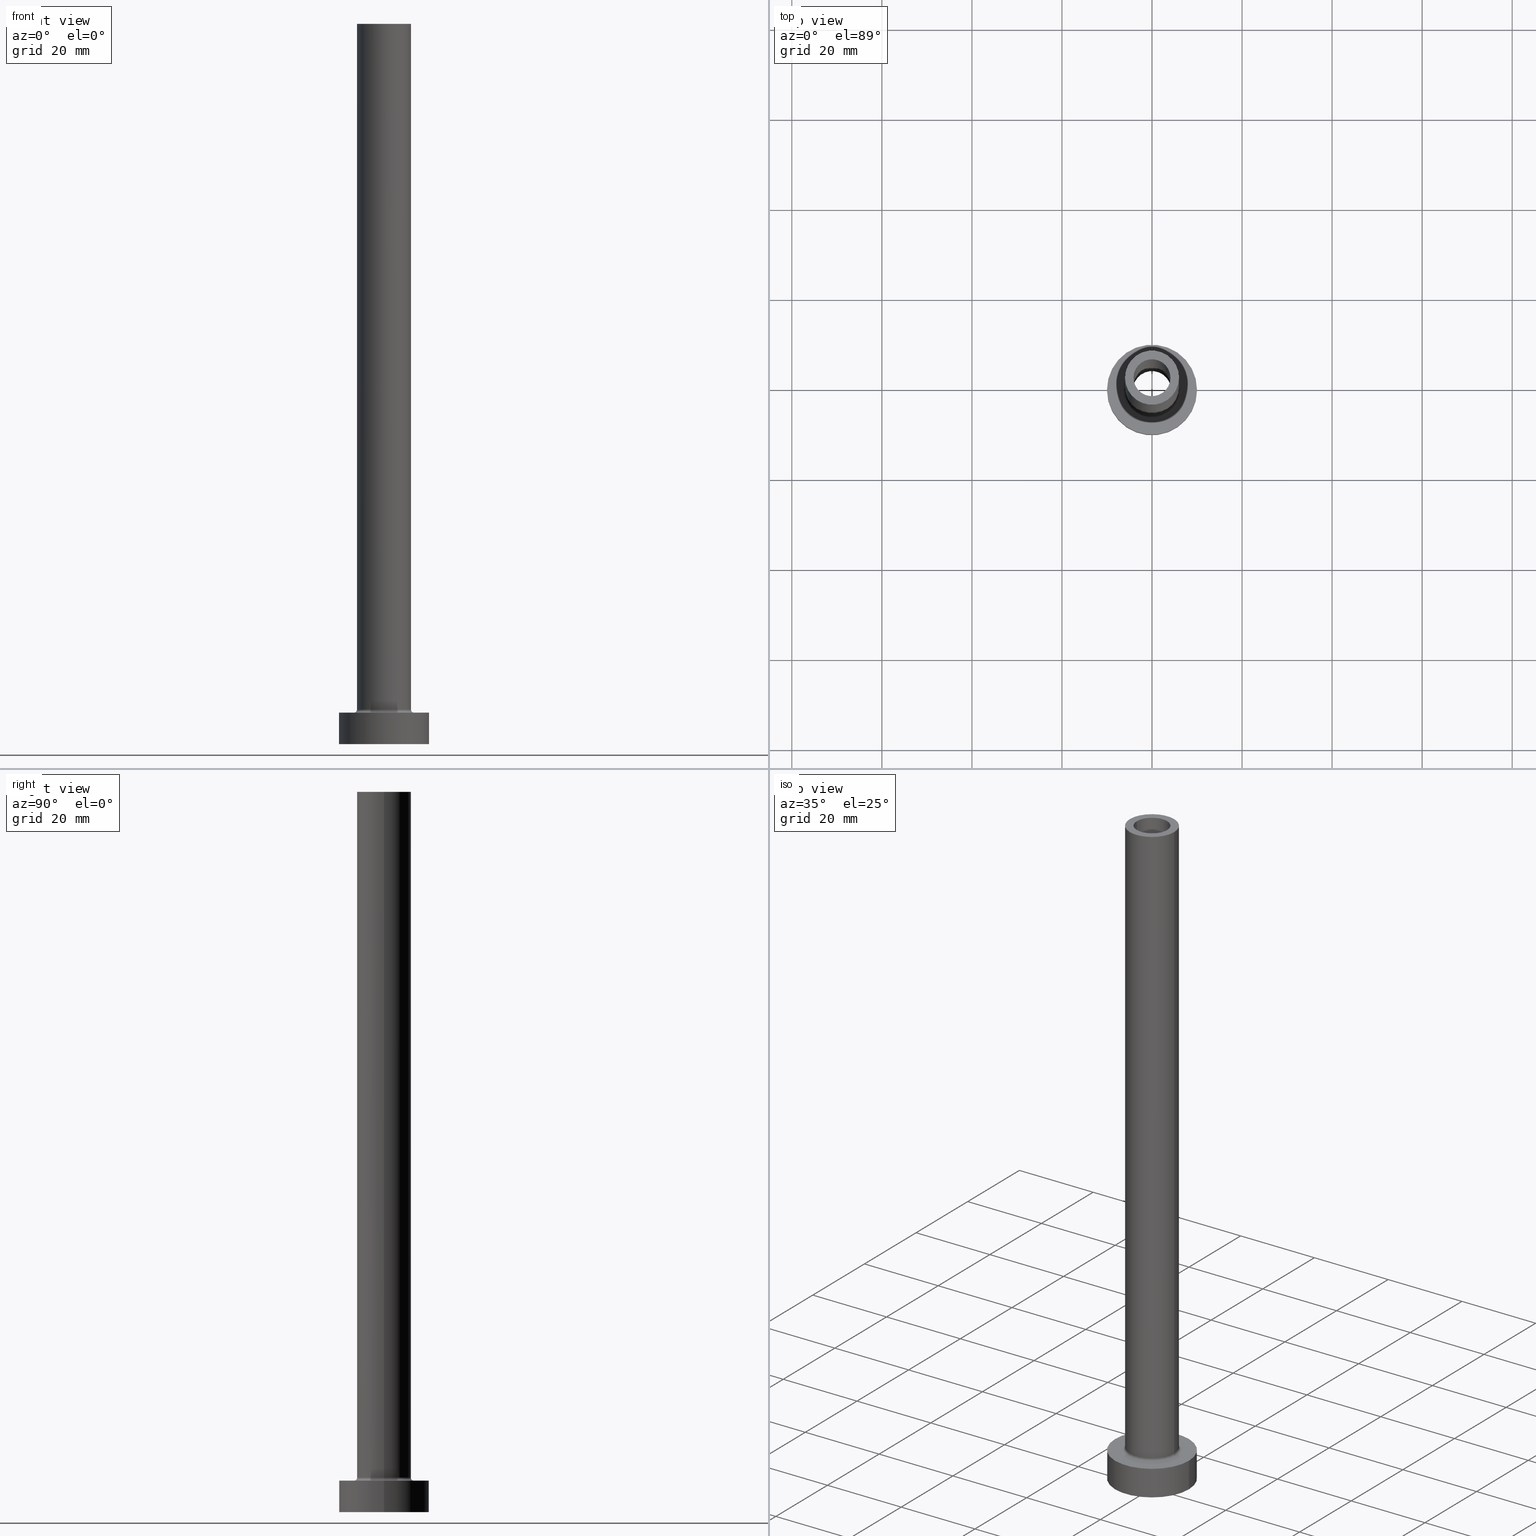
[diagram: canonical four-view strip — front | top / right | iso, engineering-drawing reading convention]
A machine part, canonical four-view strip (front | top / right | iso — engineering-drawing reading convention). The complete STEP part file that produces these views, byte-faithful:
ISO-10303-21;
HEADER;
FILE_DESCRIPTION (( 'STEP AP203' ),
    '1' );
FILE_NAME ('8e1a.STEP',
    '2023-02-13T07:45:53',
    ( '' ),
    ( '' ),
    'SwSTEP 2.0',
    'SolidWorks 2019',
    '' );
FILE_SCHEMA (( 'CONFIG_CONTROL_DESIGN' ));
ENDSEC;

DATA;
#1 = ORIENTED_EDGE ( 'NONE', *, *, #192, .T. ) ;
#2 = CARTESIAN_POINT ( 'NONE',  ( -4.099999999999999645, 0.000000000000000000, 115.0000000000000000 ) ) ;
#3 = ADVANCED_FACE ( 'NONE', ( #328, #71 ), #295, .T. ) ;
#4 = ADVANCED_BREP_SHAPE_REPRESENTATION ( '8e1a', ( #227, #251 ), #162 ) ;
#5 = VERTEX_POINT ( 'NONE', #326 ) ;
#6 = FACE_OUTER_BOUND ( 'NONE', #452, .T. ) ;
#7 = DIRECTION ( 'NONE',  ( 1.000000000000000000, 0.000000000000000000, 0.000000000000000000 ) ) ;
#8 = ORIENTED_EDGE ( 'NONE', *, *, #269, .T. ) ;
#9 = FACE_OUTER_BOUND ( 'NONE', #208, .T. ) ;
#10 = CC_DESIGN_APPROVAL ( #436, ( #102 ) ) ;
#11 = CIRCLE ( 'NONE', #386, 4.250000000000000000 ) ;
#12 = DIRECTION ( 'NONE',  ( 1.000000000000000000, 0.000000000000000000, 0.000000000000000000 ) ) ;
#13 = PRODUCT_DEFINITION ( 'NEZN�M�', '', #210, #320 ) ;
#14 = AXIS2_PLACEMENT_3D ( 'NONE', #438, #231, #161 ) ;
#15 = PRODUCT_DEFINITION_SHAPE ( 'NONE', 'NONE',  #13 ) ;
#16 = DIRECTION ( 'NONE',  ( 0.000000000000000000, 0.000000000000000000, 1.000000000000000000 ) ) ;
#17 = CARTESIAN_POINT ( 'NONE',  ( 0.000000000000000000, 0.000000000000000000, 160.0000000000000000 ) ) ;
#18 = DIRECTION ( 'NONE',  ( 0.000000000000000000, 0.000000000000000000, 1.000000000000000000 ) ) ;
#19 = EDGE_CURVE ( 'NONE', #25, #5, #220, .T. ) ;
#20 = VECTOR ( 'NONE', #380, 1000.000000000000000 ) ;
#21 = VERTEX_POINT ( 'NONE', #2 ) ;
#22 = ORIENTED_EDGE ( 'NONE', *, *, #232, .F. ) ;
#23 = APPROVAL_STATUS ( 'not_yet_approved' ) ;
#24 = CARTESIAN_POINT ( 'NONE',  ( -4.099999999999999645, 0.000000000000000000, 160.0000000000000000 ) ) ;
#25 = VERTEX_POINT ( 'NONE', #187 ) ;
#26 = DIRECTION ( 'NONE',  ( 1.000000000000000000, 0.000000000000000000, 0.000000000000000000 ) ) ;
#27 = PERSON_AND_ORGANIZATION ( #79, #300 ) ;
#28 = ORIENTED_EDGE ( 'NONE', *, *, #108, .F. ) ;
#29 = ORIENTED_EDGE ( 'NONE', *, *, #135, .T. ) ;
#30 = CARTESIAN_POINT ( 'NONE',  ( 0.000000000000000000, 0.000000000000000000, 7.000000000000000000 ) ) ;
#31 = APPROVAL_ROLE ( '' ) ;
#32 = EDGE_LOOP ( 'NONE', ( #171, #68 ) ) ;
#33 = CIRCLE ( 'NONE', #403, 10.00000000000000000 ) ;
#34 = DIRECTION ( 'NONE',  ( -0.000000000000000000, -0.000000000000000000, -1.000000000000000000 ) ) ;
#35 = ADVANCED_FACE ( 'NONE', ( #103 ), #430, .T. ) ;
#36 = CARTESIAN_POINT ( 'NONE',  ( 0.000000000000000000, 0.000000000000000000, 115.0000000000000000 ) ) ;
#37 = FACE_OUTER_BOUND ( 'NONE', #366, .T. ) ;
#38 = DIRECTION ( 'NONE',  ( 0.000000000000000000, 0.000000000000000000, 1.000000000000000000 ) ) ;
#39 = EDGE_LOOP ( 'NONE', ( #443, #406 ) ) ;
#40 = AXIS2_PLACEMENT_3D ( 'NONE', #444, #412, #342 ) ;
#41 = CARTESIAN_POINT ( 'NONE',  ( 0.000000000000000000, 0.000000000000000000, 127.0208152801713055 ) ) ;
#42 = DIRECTION ( 'NONE',  ( 0.000000000000000000, 0.000000000000000000, 1.000000000000000000 ) ) ;
#43 = CIRCLE ( 'NONE', #166, 4.099999999999999645 ) ;
#44 = FACE_OUTER_BOUND ( 'NONE', #112, .T. ) ;
#45 = ORIENTED_EDGE ( 'NONE', *, *, #442, .F. ) ;
#46 = AXIS2_PLACEMENT_3D ( 'NONE', #404, #42, #234 ) ;
#47 = FACE_OUTER_BOUND ( 'NONE', #258, .T. ) ;
#48 = DIRECTION ( 'NONE',  ( -0.000000000000000000, -0.000000000000000000, -1.000000000000000000 ) ) ;
#49 = ORIENTED_EDGE ( 'NONE', *, *, #74, .T. ) ;
#50 = DIRECTION ( 'NONE',  ( -0.000000000000000000, -0.000000000000000000, -1.000000000000000000 ) ) ;
#51 = CC_DESIGN_DATE_AND_TIME_ASSIGNMENT ( #424, #104, ( #13 ) ) ;
#52 = SHAPE_DEFINITION_REPRESENTATION ( #15, #4 ) ;
#53 = EDGE_LOOP ( 'NONE', ( #311, #377, #1, #222 ) ) ;
#54 = CYLINDRICAL_SURFACE ( 'NONE', #250, 6.000000000000000888 ) ;
#55 = ORIENTED_EDGE ( 'NONE', *, *, #425, .F. ) ;
#56 = CARTESIAN_POINT ( 'NONE',  ( 0.000000000000000000, 0.000000000000000000, 115.0000000000000000 ) ) ;
#57 = CIRCLE ( 'NONE', #235, 6.000000000000000888 ) ;
#58 = CC_DESIGN_APPROVAL ( #123, ( #13 ) ) ;
#59 = APPROVAL_DATE_TIME ( #179, #123 ) ;
#60 = CC_DESIGN_PERSON_AND_ORGANIZATION_ASSIGNMENT ( #446, #100, ( #210 ) ) ;
#61 = ORIENTED_EDGE ( 'NONE', *, *, #108, .T. ) ;
#62 = PERSON_AND_ORGANIZATION_ROLE ( 'classification_officer' ) ;
#63 = CARTESIAN_POINT ( 'NONE',  ( 0.000000000000000000, 0.000000000000000000, 115.0000000000000000 ) ) ;
#64 = CYLINDRICAL_SURFACE ( 'NONE', #154, 4.099999999999999645 ) ;
#65 = APPROVAL ( #355, 'NEUR�EN�' ) ;
#66 = AXIS2_PLACEMENT_3D ( 'NONE', #364, #392, #69 ) ;
#67 = APPROVAL_PERSON_ORGANIZATION ( #216, #436, #31 ) ;
#68 = ORIENTED_EDGE ( 'NONE', *, *, #269, .F. ) ;
#69 = DIRECTION ( 'NONE',  ( -1.000000000000000000, 1.224646799147353454E-16, 0.000000000000000000 ) ) ;
#70 = ORIENTED_EDGE ( 'NONE', *, *, #203, .F. ) ;
#71 = FACE_OUTER_BOUND ( 'NONE', #39, .T. ) ;
#72 = CYLINDRICAL_SURFACE ( 'NONE', #219, 4.099999999999999645 ) ;
#73 = AXIS2_PLACEMENT_3D ( 'NONE', #244, #173, #97 ) ;
#74 = EDGE_CURVE ( 'NONE', #182, #264, #335, .T. ) ;
#75 = ADVANCED_FACE ( 'NONE', ( #37 ), #298, .T. ) ;
#76 = CARTESIAN_POINT ( 'NONE',  ( 6.000000000000000888, 7.347880794884120722E-16, 160.0000000000000000 ) ) ;
#77 = CARTESIAN_POINT ( 'NONE',  ( 4.099999999999999645, 5.021051876504146399E-16, 115.0000000000000000 ) ) ;
#78 = ORIENTED_EDGE ( 'NONE', *, *, #135, .F. ) ;
#79 = PERSON ( 'NEUR�EN�', 'NEUR�EN�', 'NEUR�EN�', ('NEUR�EN�'), ('NEUR�EN�'), ('NEUR�EN�') ) ;
#80 = ORIENTED_EDGE ( 'NONE', *, *, #325, .T. ) ;
#81 = DIRECTION ( 'NONE',  ( 1.000000000000000000, 0.000000000000000000, 0.000000000000000000 ) ) ;
#82 = ORIENTED_EDGE ( 'NONE', *, *, #238, .F. ) ;
#83 = ADVANCED_FACE ( 'NONE', ( #9 ), #64, .F. ) ;
#84 = AXIS2_PLACEMENT_3D ( 'NONE', #354, #302, #197 ) ;
#85 = LINE ( 'NONE', #243, #449 ) ;
#86 = DIRECTION ( 'NONE',  ( -1.000000000000000000, 0.000000000000000000, 0.000000000000000000 ) ) ;
#87 = AXIS2_PLACEMENT_3D ( 'NONE', #217, #145, #363 ) ;
#88 = DIRECTION ( 'NONE',  ( -0.000000000000000000, -0.000000000000000000, -1.000000000000000000 ) ) ;
#89 = COORDINATED_UNIVERSAL_TIME_OFFSET ( 1, 0, .AHEAD. ) ;
#90 = VERTEX_POINT ( 'NONE', #426 ) ;
#91 = PLANE ( 'NONE',  #40 ) ;
#92 = EDGE_CURVE ( 'NONE', #353, #331, #327, .T. ) ;
#93 = UNCERTAINTY_MEASURE_WITH_UNIT (LENGTH_MEASURE( 1.000000000000000082E-05 ), #460, 'distance_accuracy_value', 'NONE');
#94 = LINE ( 'NONE', #221, #209 ) ;
#95 = ORIENTED_EDGE ( 'NONE', *, *, #156, .F. ) ;
#96 = DIRECTION ( 'NONE',  ( -0.000000000000000000, -0.000000000000000000, -1.000000000000000000 ) ) ;
#97 = DIRECTION ( 'NONE',  ( 1.000000000000000000, 0.000000000000000000, 0.000000000000000000 ) ) ;
#98 = DIRECTION ( 'NONE',  ( 1.000000000000000000, 0.000000000000000000, 0.000000000000000000 ) ) ;
#99 = EDGE_CURVE ( 'NONE', #107, #344, #213, .T. ) ;
#100 = PERSON_AND_ORGANIZATION_ROLE ( 'creator' ) ;
#101 = ORIENTED_EDGE ( 'NONE', *, *, #370, .F. ) ;
#102 = SECURITY_CLASSIFICATION ( '', '', #214 ) ;
#103 = FACE_OUTER_BOUND ( 'NONE', #357, .T. ) ;
#104 = DATE_TIME_ROLE ( 'creation_date' ) ;
#105 = CARTESIAN_POINT ( 'NONE',  ( 0.000000000000000000, 0.000000000000000000, 160.0000000000000000 ) ) ;
#106 = ADVANCED_FACE ( 'NONE', ( #6 ), #433, .F. ) ;
#107 = VERTEX_POINT ( 'NONE', #329 ) ;
#108 = EDGE_CURVE ( 'NONE', #5, #25, #11, .T. ) ;
#109 = CIRCLE ( 'NONE', #421, 6.700000000000001066 ) ;
#110 = ORIENTED_EDGE ( 'NONE', *, *, #19, .T. ) ;
#111 = DIRECTION ( 'NONE',  ( 0.000000000000000000, 0.000000000000000000, 1.000000000000000000 ) ) ;
#112 = EDGE_LOOP ( 'NONE', ( #55, #185, #239, #70 ) ) ;
#113 = DIRECTION ( 'NONE',  ( -1.000000000000000000, 0.000000000000000000, 0.000000000000000000 ) ) ;
#114 = AXIS2_PLACEMENT_3D ( 'NONE', #172, #50, #347 ) ;
#115 = APPROVAL_PERSON_ORGANIZATION ( #410, #65, #144 ) ;
#116 = ORIENTED_EDGE ( 'NONE', *, *, #147, .T. ) ;
#117 = EDGE_CURVE ( 'NONE', #131, #21, #256, .T. ) ;
#118 = DIRECTION ( 'NONE',  ( 0.000000000000000000, 0.000000000000000000, 1.000000000000000000 ) ) ;
#119 = DIRECTION ( 'NONE',  ( 1.000000000000000000, 0.000000000000000000, 0.000000000000000000 ) ) ;
#120 = TOROIDAL_SURFACE ( 'NONE', #272, 6.700000000000001066, 0.6999999999999999556 ) ;
#121 = ORIENTED_EDGE ( 'NONE', *, *, #419, .T. ) ;
#122 = CARTESIAN_POINT ( 'NONE',  ( 0.000000000000000000, 0.000000000000000000, 0.000000000000000000 ) ) ;
#123 = APPROVAL ( #384, 'NEUR�EN�' ) ;
#124 = ORIENTED_EDGE ( 'NONE', *, *, #158, .T. ) ;
#125 = APPROVAL_ROLE ( '' ) ;
#126 = VERTEX_POINT ( 'NONE', #376 ) ;
#127 = VECTOR ( 'NONE', #146, 1000.000000000000000 ) ;
#128 = CARTESIAN_POINT ( 'NONE',  ( 0.000000000000000000, 0.000000000000000000, 7.000000000000000000 ) ) ;
#129 = FACE_OUTER_BOUND ( 'NONE', #53, .T. ) ;
#130 = DIRECTION ( 'NONE',  ( 0.000000000000000000, 0.000000000000000000, -1.000000000000000000 ) ) ;
#131 = VERTEX_POINT ( 'NONE', #24 ) ;
#132 = CYLINDRICAL_SURFACE ( 'NONE', #114, 10.00000000000000000 ) ;
#133 = APPLICATION_CONTEXT ( 'configuration controlled 3d designs of mechanical parts and assemblies' ) ;
#134 = FACE_BOUND ( 'NONE', #405, .T. ) ;
#135 = EDGE_CURVE ( 'NONE', #90, #285, #175, .T. ) ;
#136 = DIRECTION ( 'NONE',  ( 1.000000000000000000, 0.000000000000000000, -0.000000000000000000 ) ) ;
#137 = COORDINATED_UNIVERSAL_TIME_OFFSET ( 1, 0, .AHEAD. ) ;
#138 = ORIENTED_EDGE ( 'NONE', *, *, #365, .F. ) ;
#139 = APPROVAL_DATE_TIME ( #457, #65 ) ;
#140 = CARTESIAN_POINT ( 'NONE',  ( 0.000000000000000000, 0.000000000000000000, 160.0000000000000000 ) ) ;
#141 = CIRCLE ( 'NONE', #401, 4.099999999999999645 ) ;
#142 = LOCAL_TIME ( 8, 45, 53.00000000000000000, #137 ) ;
#143 = AXIS2_PLACEMENT_3D ( 'NONE', #389, #190, #226 ) ;
#144 = APPROVAL_ROLE ( '' ) ;
#145 = DIRECTION ( 'NONE',  ( -0.000000000000000000, -0.000000000000000000, -1.000000000000000000 ) ) ;
#146 = DIRECTION ( 'NONE',  ( -0.000000000000000000, -0.000000000000000000, -1.000000000000000000 ) ) ;
#147 = EDGE_CURVE ( 'NONE', #107, #126, #207, .T. ) ;
#148 = CARTESIAN_POINT ( 'NONE',  ( 0.000000000000000000, 0.000000000000000000, 7.000000000000000000 ) ) ;
#149 = DIRECTION ( 'NONE',  ( 0.000000000000000000, 0.000000000000000000, -1.000000000000000000 ) ) ;
#150 = ORIENTED_EDGE ( 'NONE', *, *, #156, .T. ) ;
#151 = FACE_BOUND ( 'NONE', #32, .T. ) ;
#152 = VERTEX_POINT ( 'NONE', #352 ) ;
#153 = CIRCLE ( 'NONE', #73, 10.00000000000000000 ) ;
#154 = AXIS2_PLACEMENT_3D ( 'NONE', #105, #291, #359 ) ;
#155 = DIRECTION ( 'NONE',  ( 1.000000000000000000, 0.000000000000000000, 0.000000000000000000 ) ) ;
#156 = EDGE_CURVE ( 'NONE', #25, #353, #455, .T. ) ;
#157 = DIRECTION ( 'NONE',  ( 0.000000000000000000, 0.000000000000000000, 1.000000000000000000 ) ) ;
#158 = EDGE_CURVE ( 'NONE', #182, #176, #177, .T. ) ;
#159 = DIRECTION ( 'NONE',  ( 1.000000000000000000, 0.000000000000000000, 0.000000000000000000 ) ) ;
#160 = AXIS2_PLACEMENT_3D ( 'NONE', #266, #111, #399 ) ;
#161 = DIRECTION ( 'NONE',  ( -1.000000000000000000, 0.000000000000000000, 0.000000000000000000 ) ) ;
#162 =( GEOMETRIC_REPRESENTATION_CONTEXT ( 3 ) GLOBAL_UNCERTAINTY_ASSIGNED_CONTEXT ( ( #93 ) ) GLOBAL_UNIT_ASSIGNED_CONTEXT ( ( #460, #423, #379 ) ) REPRESENTATION_CONTEXT ( 'NONE', 'WORKASPACE' ) );
#163 = ADVANCED_FACE ( 'NONE', ( #134, #282 ), #248, .F. ) ;
#164 = ADVANCED_FACE ( 'NONE', ( #44 ), #120, .F. ) ;
#165 = CARTESIAN_POINT ( 'NONE',  ( 0.000000000000000000, 0.000000000000000000, 7.700000000000012612 ) ) ;
#166 = AXIS2_PLACEMENT_3D ( 'NONE', #301, #16, #193 ) ;
#167 = AXIS2_PLACEMENT_3D ( 'NONE', #63, #458, #428 ) ;
#168 = EDGE_CURVE ( 'NONE', #264, #182, #459, .T. ) ;
#169 = ADVANCED_FACE ( 'NONE', ( #129 ), #54, .T. ) ;
#170 = ORIENTED_EDGE ( 'NONE', *, *, #223, .F. ) ;
#171 = ORIENTED_EDGE ( 'NONE', *, *, #325, .F. ) ;
#172 = CARTESIAN_POINT ( 'NONE',  ( 0.000000000000000000, 0.000000000000000000, 7.000000000000000000 ) ) ;
#173 = DIRECTION ( 'NONE',  ( 0.000000000000000000, 0.000000000000000000, 1.000000000000000000 ) ) ;
#174 = PERSON_AND_ORGANIZATION ( #79, #300 ) ;
#175 = LINE ( 'NONE', #451, #400 ) ;
#176 = VERTEX_POINT ( 'NONE', #332 ) ;
#177 = LINE ( 'NONE', #319, #127 ) ;
#178 = DIRECTION ( 'NONE',  ( 0.000000000000000000, 0.000000000000000000, 1.000000000000000000 ) ) ;
#179 = DATE_AND_TIME ( #388, #142 ) ;
#180 = CARTESIAN_POINT ( 'NONE',  ( -4.250000000000000000, 0.000000000000000000, 0.000000000000000000 ) ) ;
#181 = APPLICATION_PROTOCOL_DEFINITION ( 'international standard', 'config_control_design', 1994, #268 ) ;
#182 = VERTEX_POINT ( 'NONE', #350 ) ;
#183 = PERSON_AND_ORGANIZATION ( #79, #300 ) ;
#184 = DIRECTION ( 'NONE',  ( 0.000000000000000000, 0.000000000000000000, 1.000000000000000000 ) ) ;
#185 = ORIENTED_EDGE ( 'NONE', *, *, #192, .F. ) ;
#186 = DIRECTION ( 'NONE',  ( 0.000000000000000000, 0.000000000000000000, -1.000000000000000000 ) ) ;
#187 = CARTESIAN_POINT ( 'NONE',  ( -4.250000000000000000, 0.000000000000000000, 115.0000000000000000 ) ) ;
#188 = CARTESIAN_POINT ( 'NONE',  ( -4.099999999999999645, 0.000000000000000000, 160.0000000000000000 ) ) ;
#189 = DIRECTION ( 'NONE',  ( 1.000000000000000000, 0.000000000000000000, 0.000000000000000000 ) ) ;
#190 = DIRECTION ( 'NONE',  ( 0.000000000000000000, 0.000000000000000000, 1.000000000000000000 ) ) ;
#191 = CC_DESIGN_PERSON_AND_ORGANIZATION_ASSIGNMENT ( #174, #356, ( #210 ) ) ;
#192 = EDGE_CURVE ( 'NONE', #318, #176, #57, .T. ) ;
#193 = DIRECTION ( 'NONE',  ( 1.000000000000000000, 0.000000000000000000, 0.000000000000000000 ) ) ;
#194 = VECTOR ( 'NONE', #294, 1000.000000000000000 ) ;
#195 = ADVANCED_FACE ( 'NONE', ( #151, #277 ), #204, .T. ) ;
#196 = CARTESIAN_POINT ( 'NONE',  ( 0.000000000000000000, 0.000000000000000000, 160.0000000000000000 ) ) ;
#197 = DIRECTION ( 'NONE',  ( 0.000000000000000000, 0.000000000000000000, -1.000000000000000000 ) ) ;
#198 = AXIS2_PLACEMENT_3D ( 'NONE', #56, #200, #378 ) ;
#199 = ORIENTED_EDGE ( 'NONE', *, *, #117, .F. ) ;
#200 = DIRECTION ( 'NONE',  ( 0.000000000000000000, 0.000000000000000000, 1.000000000000000000 ) ) ;
#201 = EDGE_LOOP ( 'NONE', ( #49, #411 ) ) ;
#202 = DIRECTION ( 'NONE',  ( -0.000000000000000000, -0.000000000000000000, -1.000000000000000000 ) ) ;
#203 = EDGE_CURVE ( 'NONE', #242, #152, #349, .T. ) ;
#204 = PLANE ( 'NONE',  #276 ) ;
#205 = ADVANCED_FACE ( 'NONE', ( #453 ), #132, .T. ) ;
#206 = DATE_AND_TIME ( #316, #229 ) ;
#207 = LINE ( 'NONE', #281, #383 ) ;
#208 = EDGE_LOOP ( 'NONE', ( #80, #29, #395, #199 ) ) ;
#209 = VECTOR ( 'NONE', #149, 1000.000000000000000 ) ;
#210 = PRODUCT_DEFINITION_FORMATION_WITH_SPECIFIED_SOURCE ( 'LIBOVOLN�', '', #402, .NOT_KNOWN. ) ;
#211 = DIRECTION ( 'NONE',  ( 1.000000000000000000, 0.000000000000000000, 0.000000000000000000 ) ) ;
#212 = CLOSED_SHELL ( 'NONE', ( #83, #267, #313, #169, #205, #75, #3, #163, #35, #195, #164, #106, #230, #338 ) ) ;
#213 = CIRCLE ( 'NONE', #261, 10.00000000000000000 ) ;
#214 = SECURITY_CLASSIFICATION_LEVEL ( 'unclassified' ) ;
#215 = ORIENTED_EDGE ( 'NONE', *, *, #92, .T. ) ;
#216 = PERSON_AND_ORGANIZATION ( #79, #300 ) ;
#217 = CARTESIAN_POINT ( 'NONE',  ( 0.000000000000000000, 0.000000000000000000, 7.000000000000000000 ) ) ;
#218 = ORIENTED_EDGE ( 'NONE', *, *, #92, .F. ) ;
#219 = AXIS2_PLACEMENT_3D ( 'NONE', #322, #408, #86 ) ;
#220 = CIRCLE ( 'NONE', #167, 4.250000000000000000 ) ;
#221 = CARTESIAN_POINT ( 'NONE',  ( 4.250000000000000000, 5.204748896376250699E-16, 127.0208152801713055 ) ) ;
#222 = ORIENTED_EDGE ( 'NONE', *, *, #158, .F. ) ;
#223 = EDGE_CURVE ( 'NONE', #285, #21, #259, .T. ) ;
#224 = DIRECTION ( 'NONE',  ( 0.000000000000000000, 0.000000000000000000, 1.000000000000000000 ) ) ;
#225 = ORIENTED_EDGE ( 'NONE', *, *, #203, .T. ) ;
#226 = DIRECTION ( 'NONE',  ( 1.000000000000000000, 0.000000000000000000, 0.000000000000000000 ) ) ;
#227 = MANIFOLD_SOLID_BREP ( 'Odebrat vysunut�m4', #212 ) ;
#228 = AXIS2_PLACEMENT_3D ( 'NONE', #122, #273, #119 ) ;
#229 = LOCAL_TIME ( 8, 45, 53.00000000000000000, #287 ) ;
#230 = ADVANCED_FACE ( 'NONE', ( #240, #47 ), #91, .F. ) ;
#231 = DIRECTION ( 'NONE',  ( 0.000000000000000000, 0.000000000000000000, -1.000000000000000000 ) ) ;
#232 = EDGE_CURVE ( 'NONE', #331, #353, #434, .T. ) ;
#233 = FACE_OUTER_BOUND ( 'NONE', #255, .T. ) ;
#234 = DIRECTION ( 'NONE',  ( 1.000000000000000000, 0.000000000000000000, -0.000000000000000000 ) ) ;
#235 = AXIS2_PLACEMENT_3D ( 'NONE', #374, #178, #7 ) ;
#236 = CARTESIAN_POINT ( 'NONE',  ( 4.250000000000000000, 5.204748896376250699E-16, 0.000000000000000000 ) ) ;
#237 = EDGE_LOOP ( 'NONE', ( #310, #116, #249, #138 ) ) ;
#238 = EDGE_CURVE ( 'NONE', #264, #318, #85, .T. ) ;
#239 = ORIENTED_EDGE ( 'NONE', *, *, #394, .T. ) ;
#240 = FACE_BOUND ( 'NONE', #393, .T. ) ;
#241 = AXIS2_PLACEMENT_3D ( 'NONE', #196, #118, #439 ) ;
#242 = VERTEX_POINT ( 'NONE', #448 ) ;
#243 = CARTESIAN_POINT ( 'NONE',  ( 6.000000000000000888, 7.347880794884120722E-16, 160.0000000000000000 ) ) ;
#244 = CARTESIAN_POINT ( 'NONE',  ( 0.000000000000000000, 0.000000000000000000, 0.000000000000000000 ) ) ;
#245 = CC_DESIGN_DATE_AND_TIME_ASSIGNMENT ( #254, #323, ( #102 ) ) ;
#246 = CALENDAR_DATE ( 2023, 13, 2 ) ;
#247 = ORIENTED_EDGE ( 'NONE', *, *, #425, .T. ) ;
#248 = PLANE ( 'NONE',  #46 ) ;
#249 = ORIENTED_EDGE ( 'NONE', *, *, #370, .T. ) ;
#250 = AXIS2_PLACEMENT_3D ( 'NONE', #252, #88, #387 ) ;
#251 = AXIS2_PLACEMENT_3D ( 'NONE', #305, #330, #98 ) ;
#252 = CARTESIAN_POINT ( 'NONE',  ( 0.000000000000000000, 0.000000000000000000, 160.0000000000000000 ) ) ;
#253 = DIRECTION ( 'NONE',  ( -1.000000000000000000, 0.000000000000000000, 0.000000000000000000 ) ) ;
#254 = DATE_AND_TIME ( #246, #371 ) ;
#255 = EDGE_LOOP ( 'NONE', ( #110, #422, #314, #95 ) ) ;
#256 = LINE ( 'NONE', #188, #20 ) ;
#257 = CARTESIAN_POINT ( 'NONE',  ( -10.00000000000000000, 0.000000000000000000, 0.000000000000000000 ) ) ;
#258 = EDGE_LOOP ( 'NONE', ( #275, #28 ) ) ;
#259 = CIRCLE ( 'NONE', #198, 4.099999999999999645 ) ;
#260 = PRODUCT_RELATED_PRODUCT_CATEGORY ( 'detail', '', ( #402 ) ) ;
#261 = AXIS2_PLACEMENT_3D ( 'NONE', #148, #292, #432 ) ;
#262 = EDGE_LOOP ( 'NONE', ( #456, #225 ) ) ;
#263 = EDGE_CURVE ( 'NONE', #420, #126, #369, .T. ) ;
#264 = VERTEX_POINT ( 'NONE', #76 ) ;
#265 = DIRECTION ( 'NONE',  ( 1.000000000000000000, 0.000000000000000000, 0.000000000000000000 ) ) ;
#266 = CARTESIAN_POINT ( 'NONE',  ( 0.000000000000000000, 0.000000000000000000, 7.700000000000012612 ) ) ;
#267 = ADVANCED_FACE ( 'NONE', ( #233 ), #306, .F. ) ;
#268 = APPLICATION_CONTEXT ( 'configuration controlled 3d designs of mechanical parts and assemblies' ) ;
#269 = EDGE_CURVE ( 'NONE', #90, #131, #43, .T. ) ;
#270 = FACE_OUTER_BOUND ( 'NONE', #346, .T. ) ;
#271 = DIRECTION ( 'NONE',  ( 0.000000000000000000, 0.000000000000000000, 1.000000000000000000 ) ) ;
#272 = AXIS2_PLACEMENT_3D ( 'NONE', #304, #157, #159 ) ;
#273 = DIRECTION ( 'NONE',  ( 0.000000000000000000, 0.000000000000000000, 1.000000000000000000 ) ) ;
#274 = AXIS2_PLACEMENT_3D ( 'NONE', #41, #186, #113 ) ;
#275 = ORIENTED_EDGE ( 'NONE', *, *, #19, .F. ) ;
#276 = AXIS2_PLACEMENT_3D ( 'NONE', #284, #345, #136 ) ;
#277 = FACE_OUTER_BOUND ( 'NONE', #201, .T. ) ;
#278 = MECHANICAL_CONTEXT ( 'NONE', #133, 'mechanical' ) ;
#279 = AXIS2_PLACEMENT_3D ( 'NONE', #140, #360, #253 ) ;
#280 = ORIENTED_EDGE ( 'NONE', *, *, #263, .F. ) ;
#281 = CARTESIAN_POINT ( 'NONE',  ( 10.00000000000000000, 1.224646799147353256E-15, 7.000000000000000000 ) ) ;
#282 = FACE_OUTER_BOUND ( 'NONE', #341, .T. ) ;
#283 = CARTESIAN_POINT ( 'NONE',  ( -10.00000000000000000, 0.000000000000000000, 7.000000000000000000 ) ) ;
#284 = CARTESIAN_POINT ( 'NONE',  ( 0.000000000000000000, 0.000000000000000000, 160.0000000000000000 ) ) ;
#285 = VERTEX_POINT ( 'NONE', #77 ) ;
#286 = CC_DESIGN_PERSON_AND_ORGANIZATION_ASSIGNMENT ( #343, #62, ( #102 ) ) ;
#287 = COORDINATED_UNIVERSAL_TIME_OFFSET ( 1, 0, .AHEAD. ) ;
#288 = CARTESIAN_POINT ( 'NONE',  ( 0.000000000000000000, 0.000000000000000000, 7.000000000000000000 ) ) ;
#289 = AXIS2_PLACEMENT_3D ( 'NONE', #165, #18, #303 ) ;
#290 = PERSON_AND_ORGANIZATION_ROLE ( 'creator' ) ;
#291 = DIRECTION ( 'NONE',  ( 0.000000000000000000, 0.000000000000000000, -1.000000000000000000 ) ) ;
#292 = DIRECTION ( 'NONE',  ( 0.000000000000000000, 0.000000000000000000, 1.000000000000000000 ) ) ;
#293 = CC_DESIGN_PERSON_AND_ORGANIZATION_ASSIGNMENT ( #321, #290, ( #13 ) ) ;
#294 = DIRECTION ( 'NONE',  ( 0.000000000000000000, 0.000000000000000000, -1.000000000000000000 ) ) ;
#295 = PLANE ( 'NONE',  #309 ) ;
#296 = TOROIDAL_SURFACE ( 'NONE', #289, 6.700000000000001066, 0.6999999999999999556 ) ;
#297 = LOCAL_TIME ( 8, 45, 53.00000000000000000, #89 ) ;
#298 = CYLINDRICAL_SURFACE ( 'NONE', #87, 10.00000000000000000 ) ;
#299 = VECTOR ( 'NONE', #48, 1000.000000000000000 ) ;
#300 = ORGANIZATION ( 'NEUR�EN�', 'NEUR�EN�', '' ) ;
#301 = CARTESIAN_POINT ( 'NONE',  ( 0.000000000000000000, 0.000000000000000000, 160.0000000000000000 ) ) ;
#302 = DIRECTION ( 'NONE',  ( 0.000000000000000000, -1.000000000000000000, 0.000000000000000000 ) ) ;
#303 = DIRECTION ( 'NONE',  ( 1.000000000000000000, 0.000000000000000000, 0.000000000000000000 ) ) ;
#304 = CARTESIAN_POINT ( 'NONE',  ( 0.000000000000000000, 0.000000000000000000, 7.700000000000012612 ) ) ;
#305 = CARTESIAN_POINT ( 'NONE',  ( 0.000000000000000000, 0.000000000000000000, 0.000000000000000000 ) ) ;
#306 = CYLINDRICAL_SURFACE ( 'NONE', #14, 4.250000000000000000 ) ;
#307 = ORIENTED_EDGE ( 'NONE', *, *, #263, .T. ) ;
#308 = AXIS2_PLACEMENT_3D ( 'NONE', #312, #315, #26 ) ;
#309 = AXIS2_PLACEMENT_3D ( 'NONE', #288, #184, #361 ) ;
#310 = ORIENTED_EDGE ( 'NONE', *, *, #99, .F. ) ;
#311 = ORIENTED_EDGE ( 'NONE', *, *, #168, .F. ) ;
#312 = CARTESIAN_POINT ( 'NONE',  ( 0.000000000000000000, 0.000000000000000000, 0.000000000000000000 ) ) ;
#313 = ADVANCED_FACE ( 'NONE', ( #367 ), #296, .F. ) ;
#314 = ORIENTED_EDGE ( 'NONE', *, *, #232, .T. ) ;
#315 = DIRECTION ( 'NONE',  ( -0.000000000000000000, -0.000000000000000000, -1.000000000000000000 ) ) ;
#316 = CALENDAR_DATE ( 2023, 13, 2 ) ;
#317 = APPROVAL_PERSON_ORGANIZATION ( #27, #123, #125 ) ;
#318 = VERTEX_POINT ( 'NONE', #398 ) ;
#319 = CARTESIAN_POINT ( 'NONE',  ( -6.000000000000000888, 0.000000000000000000, 160.0000000000000000 ) ) ;
#320 = DESIGN_CONTEXT ( 'detailed design', #268, 'design' ) ;
#321 = PERSON_AND_ORGANIZATION ( #79, #300 ) ;
#322 = CARTESIAN_POINT ( 'NONE',  ( 0.000000000000000000, 0.000000000000000000, 160.0000000000000000 ) ) ;
#323 = DATE_TIME_ROLE ( 'classification_date' ) ;
#324 = ORIENTED_EDGE ( 'NONE', *, *, #147, .F. ) ;
#325 = EDGE_CURVE ( 'NONE', #131, #90, #334, .T. ) ;
#326 = CARTESIAN_POINT ( 'NONE',  ( 4.250000000000000000, 5.204748896376250699E-16, 115.0000000000000000 ) ) ;
#327 = CIRCLE ( 'NONE', #336, 4.250000000000000000 ) ;
#328 = FACE_BOUND ( 'NONE', #262, .T. ) ;
#329 = CARTESIAN_POINT ( 'NONE',  ( 10.00000000000000000, 1.224646799147353256E-15, 7.000000000000000000 ) ) ;
#330 = DIRECTION ( 'NONE',  ( 0.000000000000000000, 0.000000000000000000, 1.000000000000000000 ) ) ;
#331 = VERTEX_POINT ( 'NONE', #236 ) ;
#332 = CARTESIAN_POINT ( 'NONE',  ( -6.000000000000000888, 0.000000000000000000, 7.700000000000012612 ) ) ;
#333 = ORIENTED_EDGE ( 'NONE', *, *, #365, .T. ) ;
#334 = CIRCLE ( 'NONE', #241, 4.099999999999999645 ) ;
#335 = CIRCLE ( 'NONE', #143, 6.000000000000000888 ) ;
#336 = AXIS2_PLACEMENT_3D ( 'NONE', #391, #34, #155 ) ;
#337 = CC_DESIGN_PERSON_AND_ORGANIZATION_ASSIGNMENT ( #183, #351, ( #402 ) ) ;
#338 = ADVANCED_FACE ( 'NONE', ( #270 ), #72, .F. ) ;
#339 = CIRCLE ( 'NONE', #84, 0.7000000000000000666 ) ;
#340 = CC_DESIGN_SECURITY_CLASSIFICATION ( #102, ( #210 ) ) ;
#341 = EDGE_LOOP ( 'NONE', ( #280, #101 ) ) ;
#342 = DIRECTION ( 'NONE',  ( 1.000000000000000000, 0.000000000000000000, -0.000000000000000000 ) ) ;
#343 = PERSON_AND_ORGANIZATION ( #79, #300 ) ;
#344 = VERTEX_POINT ( 'NONE', #283 ) ;
#345 = DIRECTION ( 'NONE',  ( 0.000000000000000000, 0.000000000000000000, 1.000000000000000000 ) ) ;
#346 = EDGE_LOOP ( 'NONE', ( #78, #8, #381, #170 ) ) ;
#347 = DIRECTION ( 'NONE',  ( -1.000000000000000000, 0.000000000000000000, 0.000000000000000000 ) ) ;
#348 = CARTESIAN_POINT ( 'NONE',  ( -10.00000000000000000, 0.000000000000000000, 7.000000000000000000 ) ) ;
#349 = CIRCLE ( 'NONE', #440, 6.700000000000001066 ) ;
#350 = CARTESIAN_POINT ( 'NONE',  ( -6.000000000000000888, 0.000000000000000000, 160.0000000000000000 ) ) ;
#351 = PERSON_AND_ORGANIZATION_ROLE ( 'design_owner' ) ;
#352 = CARTESIAN_POINT ( 'NONE',  ( 6.700000000000001066, 0.000000000000000000, 7.000000000000006217 ) ) ;
#353 = VERTEX_POINT ( 'NONE', #180 ) ;
#354 = CARTESIAN_POINT ( 'NONE',  ( 6.700000000000001066, 0.000000000000000000, 7.700000000000012612 ) ) ;
#355 = APPROVAL_STATUS ( 'not_yet_approved' ) ;
#356 = PERSON_AND_ORGANIZATION_ROLE ( 'design_supplier' ) ;
#357 = EDGE_LOOP ( 'NONE', ( #82, #368, #124, #121 ) ) ;
#358 = CIRCLE ( 'NONE', #160, 6.000000000000000888 ) ;
#359 = DIRECTION ( 'NONE',  ( -1.000000000000000000, 0.000000000000000000, 0.000000000000000000 ) ) ;
#360 = DIRECTION ( 'NONE',  ( -0.000000000000000000, -0.000000000000000000, -1.000000000000000000 ) ) ;
#361 = DIRECTION ( 'NONE',  ( 1.000000000000000000, 0.000000000000000000, -0.000000000000000000 ) ) ;
#362 = CARTESIAN_POINT ( 'NONE',  ( 0.000000000000000000, 0.000000000000000000, 115.0000000000000000 ) ) ;
#363 = DIRECTION ( 'NONE',  ( -1.000000000000000000, 0.000000000000000000, 0.000000000000000000 ) ) ;
#364 = CARTESIAN_POINT ( 'NONE',  ( -6.700000000000001066, 8.205133554287267548E-16, 7.700000000000012612 ) ) ;
#365 = EDGE_CURVE ( 'NONE', #344, #420, #382, .T. ) ;
#366 = EDGE_LOOP ( 'NONE', ( #324, #416, #333, #307 ) ) ;
#367 = FACE_OUTER_BOUND ( 'NONE', #445, .T. ) ;
#368 = ORIENTED_EDGE ( 'NONE', *, *, #74, .F. ) ;
#369 = CIRCLE ( 'NONE', #228, 10.00000000000000000 ) ;
#370 = EDGE_CURVE ( 'NONE', #126, #420, #153, .T. ) ;
#371 = LOCAL_TIME ( 8, 45, 53.00000000000000000, #375 ) ;
#372 = ORIENTED_EDGE ( 'NONE', *, *, #396, .F. ) ;
#373 = EDGE_CURVE ( 'NONE', #344, #107, #33, .T. ) ;
#374 = CARTESIAN_POINT ( 'NONE',  ( 0.000000000000000000, 0.000000000000000000, 7.700000000000012612 ) ) ;
#375 = COORDINATED_UNIVERSAL_TIME_OFFSET ( 1, 0, .AHEAD. ) ;
#376 = CARTESIAN_POINT ( 'NONE',  ( 10.00000000000000000, 1.224646799147353256E-15, 0.000000000000000000 ) ) ;
#377 = ORIENTED_EDGE ( 'NONE', *, *, #238, .T. ) ;
#378 = DIRECTION ( 'NONE',  ( 1.000000000000000000, 0.000000000000000000, 0.000000000000000000 ) ) ;
#379 =( NAMED_UNIT ( * ) SI_UNIT ( $, .STERADIAN. ) SOLID_ANGLE_UNIT ( ) );
#380 = DIRECTION ( 'NONE',  ( 0.000000000000000000, 0.000000000000000000, -1.000000000000000000 ) ) ;
#381 = ORIENTED_EDGE ( 'NONE', *, *, #117, .T. ) ;
#382 = LINE ( 'NONE', #348, #299 ) ;
#383 = VECTOR ( 'NONE', #415, 1000.000000000000000 ) ;
#384 = APPROVAL_STATUS ( 'not_yet_approved' ) ;
#385 = ORIENTED_EDGE ( 'NONE', *, *, #394, .F. ) ;
#386 = AXIS2_PLACEMENT_3D ( 'NONE', #362, #38, #12 ) ;
#387 = DIRECTION ( 'NONE',  ( -1.000000000000000000, 0.000000000000000000, 0.000000000000000000 ) ) ;
#388 = CALENDAR_DATE ( 2023, 13, 2 ) ;
#389 = CARTESIAN_POINT ( 'NONE',  ( 0.000000000000000000, 0.000000000000000000, 160.0000000000000000 ) ) ;
#390 = DIRECTION ( 'NONE',  ( 1.000000000000000000, 0.000000000000000000, 0.000000000000000000 ) ) ;
#391 = CARTESIAN_POINT ( 'NONE',  ( 0.000000000000000000, 0.000000000000000000, 0.000000000000000000 ) ) ;
#392 = DIRECTION ( 'NONE',  ( 1.224646799147353207E-16, 1.000000000000000000, -0.000000000000000000 ) ) ;
#393 = EDGE_LOOP ( 'NONE', ( #437, #397 ) ) ;
#394 = EDGE_CURVE ( 'NONE', #318, #152, #339, .T. ) ;
#395 = ORIENTED_EDGE ( 'NONE', *, *, #414, .F. ) ;
#396 = EDGE_CURVE ( 'NONE', #5, #331, #94, .T. ) ;
#397 = ORIENTED_EDGE ( 'NONE', *, *, #223, .T. ) ;
#398 = CARTESIAN_POINT ( 'NONE',  ( 6.000000000000000888, 7.347880794884120722E-16, 7.700000000000012612 ) ) ;
#399 = DIRECTION ( 'NONE',  ( 1.000000000000000000, 0.000000000000000000, 0.000000000000000000 ) ) ;
#400 = VECTOR ( 'NONE', #130, 1000.000000000000000 ) ;
#401 = AXIS2_PLACEMENT_3D ( 'NONE', #36, #224, #189 ) ;
#402 = PRODUCT ( '8e1a', '8e1a', '', ( #278 ) ) ;
#403 = AXIS2_PLACEMENT_3D ( 'NONE', #128, #413, #211 ) ;
#404 = CARTESIAN_POINT ( 'NONE',  ( 0.000000000000000000, 0.000000000000000000, 0.000000000000000000 ) ) ;
#405 = EDGE_LOOP ( 'NONE', ( #218, #22 ) ) ;
#406 = ORIENTED_EDGE ( 'NONE', *, *, #99, .T. ) ;
#407 = CARTESIAN_POINT ( 'NONE',  ( 0.000000000000000000, 0.000000000000000000, 7.000000000000000000 ) ) ;
#408 = DIRECTION ( 'NONE',  ( 0.000000000000000000, 0.000000000000000000, -1.000000000000000000 ) ) ;
#409 = CIRCLE ( 'NONE', #66, 0.7000000000000000666 ) ;
#410 = PERSON_AND_ORGANIZATION ( #79, #300 ) ;
#411 = ORIENTED_EDGE ( 'NONE', *, *, #168, .T. ) ;
#412 = DIRECTION ( 'NONE',  ( 0.000000000000000000, 0.000000000000000000, 1.000000000000000000 ) ) ;
#413 = DIRECTION ( 'NONE',  ( 0.000000000000000000, 0.000000000000000000, 1.000000000000000000 ) ) ;
#414 = EDGE_CURVE ( 'NONE', #21, #285, #141, .T. ) ;
#415 = DIRECTION ( 'NONE',  ( -0.000000000000000000, -0.000000000000000000, -1.000000000000000000 ) ) ;
#416 = ORIENTED_EDGE ( 'NONE', *, *, #373, .F. ) ;
#417 = DIRECTION ( 'NONE',  ( -0.000000000000000000, -0.000000000000000000, -1.000000000000000000 ) ) ;
#418 = CALENDAR_DATE ( 2023, 13, 2 ) ;
#419 = EDGE_CURVE ( 'NONE', #176, #318, #358, .T. ) ;
#420 = VERTEX_POINT ( 'NONE', #257 ) ;
#421 = AXIS2_PLACEMENT_3D ( 'NONE', #30, #417, #390 ) ;
#422 = ORIENTED_EDGE ( 'NONE', *, *, #396, .T. ) ;
#423 =( NAMED_UNIT ( * ) PLANE_ANGLE_UNIT ( ) SI_UNIT ( $, .RADIAN. ) );
#424 = DATE_AND_TIME ( #454, #435 ) ;
#425 = EDGE_CURVE ( 'NONE', #176, #242, #409, .T. ) ;
#426 = CARTESIAN_POINT ( 'NONE',  ( 4.099999999999999645, 5.021051876504146399E-16, 160.0000000000000000 ) ) ;
#427 = APPLICATION_PROTOCOL_DEFINITION ( 'international standard', 'config_control_design', 1994, #133 ) ;
#428 = DIRECTION ( 'NONE',  ( 1.000000000000000000, 0.000000000000000000, 0.000000000000000000 ) ) ;
#429 = AXIS2_PLACEMENT_3D ( 'NONE', #17, #271, #265 ) ;
#430 = CYLINDRICAL_SURFACE ( 'NONE', #279, 6.000000000000000888 ) ;
#431 = CARTESIAN_POINT ( 'NONE',  ( -4.250000000000000000, 0.000000000000000000, 127.0208152801713055 ) ) ;
#432 = DIRECTION ( 'NONE',  ( 1.000000000000000000, 0.000000000000000000, 0.000000000000000000 ) ) ;
#433 = CYLINDRICAL_SURFACE ( 'NONE', #274, 4.250000000000000000 ) ;
#434 = CIRCLE ( 'NONE', #308, 4.250000000000000000 ) ;
#435 = LOCAL_TIME ( 8, 45, 53.00000000000000000, #461 ) ;
#436 = APPROVAL ( #23, 'NEUR�EN�' ) ;
#437 = ORIENTED_EDGE ( 'NONE', *, *, #414, .T. ) ;
#438 = CARTESIAN_POINT ( 'NONE',  ( 0.000000000000000000, 0.000000000000000000, 127.0208152801713055 ) ) ;
#439 = DIRECTION ( 'NONE',  ( 1.000000000000000000, 0.000000000000000000, 0.000000000000000000 ) ) ;
#440 = AXIS2_PLACEMENT_3D ( 'NONE', #407, #202, #81 ) ;
#441 = CC_DESIGN_APPROVAL ( #65, ( #210 ) ) ;
#442 = EDGE_CURVE ( 'NONE', #152, #242, #109, .T. ) ;
#443 = ORIENTED_EDGE ( 'NONE', *, *, #373, .T. ) ;
#444 = CARTESIAN_POINT ( 'NONE',  ( 0.000000000000000000, 0.000000000000000000, 115.0000000000000000 ) ) ;
#445 = EDGE_LOOP ( 'NONE', ( #447, #247, #45, #385 ) ) ;
#446 = PERSON_AND_ORGANIZATION ( #79, #300 ) ;
#447 = ORIENTED_EDGE ( 'NONE', *, *, #419, .F. ) ;
#448 = CARTESIAN_POINT ( 'NONE',  ( -6.700000000000001066, 8.205133554287267548E-16, 7.000000000000006217 ) ) ;
#449 = VECTOR ( 'NONE', #96, 1000.000000000000000 ) ;
#450 = APPROVAL_DATE_TIME ( #206, #436 ) ;
#451 = CARTESIAN_POINT ( 'NONE',  ( 4.099999999999999645, 5.021051876504146399E-16, 160.0000000000000000 ) ) ;
#452 = EDGE_LOOP ( 'NONE', ( #372, #61, #150, #215 ) ) ;
#453 = FACE_OUTER_BOUND ( 'NONE', #237, .T. ) ;
#454 = CALENDAR_DATE ( 2023, 13, 2 ) ;
#455 = LINE ( 'NONE', #431, #194 ) ;
#456 = ORIENTED_EDGE ( 'NONE', *, *, #442, .T. ) ;
#457 = DATE_AND_TIME ( #418, #297 ) ;
#458 = DIRECTION ( 'NONE',  ( 0.000000000000000000, 0.000000000000000000, 1.000000000000000000 ) ) ;
#459 = CIRCLE ( 'NONE', #429, 6.000000000000000888 ) ;
#460 =( LENGTH_UNIT ( ) NAMED_UNIT ( * ) SI_UNIT ( .MILLI., .METRE. ) );
#461 = COORDINATED_UNIVERSAL_TIME_OFFSET ( 1, 0, .AHEAD. ) ;
ENDSEC;
END-ISO-10303-21;
